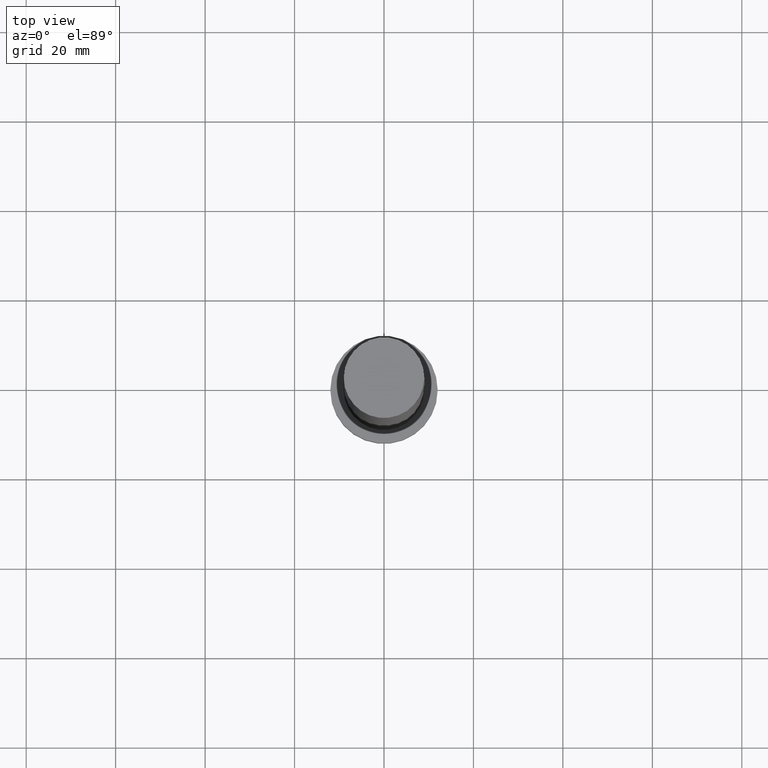
[diagram: clean part render]
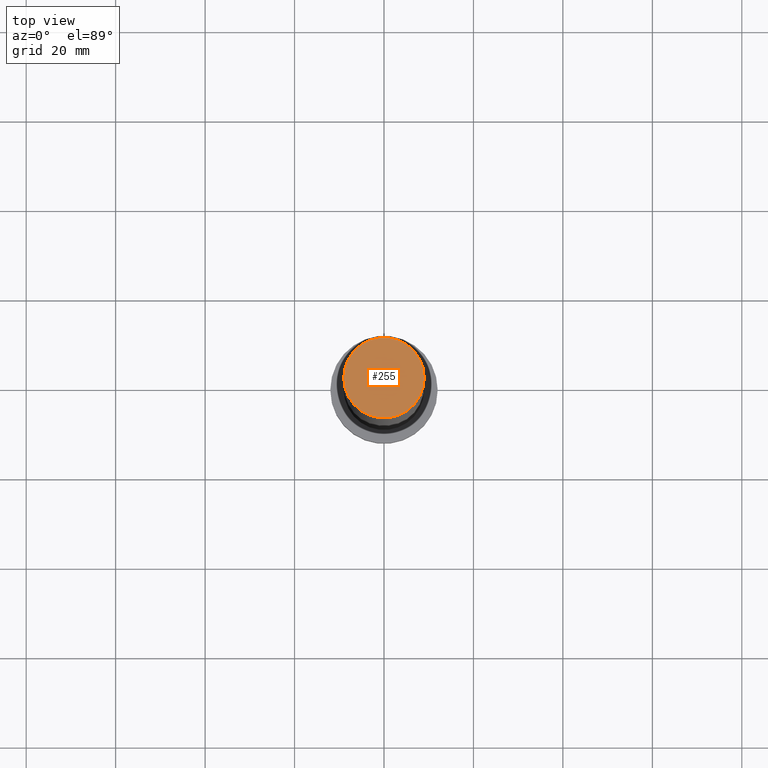
[diagram: same view with one face highlighted and labeled with its STEP entity id]
A machine part, top view. The second image highlights one B-rep face of the part: STEP entity #255.
In plain terms, the highlighted planar face has unit normal (0, 0, 1).
Its self-contained STEP definition (entity closure, byte-faithful):
#2 = VERTEX_POINT ( 'NONE', #157 ) ;
#10 = CARTESIAN_POINT ( 'NONE',  ( 0.000000000000000000, 0.000000000000000000, 160.0000000000000000 ) ) ;
#13 = CIRCLE ( 'NONE', #38, 9.000000000000000000 ) ;
#38 = AXIS2_PLACEMENT_3D ( 'NONE', #173, #232, #124 ) ;
#44 = DIRECTION ( 'NONE',  ( 0.000000000000000000, 0.000000000000000000, 1.000000000000000000 ) ) ;
#46 = DIRECTION ( 'NONE',  ( 1.000000000000000000, 0.000000000000000000, -0.000000000000000000 ) ) ;
#74 = AXIS2_PLACEMENT_3D ( 'NONE', #215, #44, #178 ) ;
#76 = EDGE_CURVE ( 'NONE', #241, #2, #13, .T. ) ;
#82 = ORIENTED_EDGE ( 'NONE', *, *, #199, .T. ) ;
#84 = EDGE_LOOP ( 'NONE', ( #82, #145 ) ) ;
#96 = FACE_OUTER_BOUND ( 'NONE', #84, .T. ) ;
#111 = CIRCLE ( 'NONE', #74, 9.000000000000000000 ) ;
#124 = DIRECTION ( 'NONE',  ( 1.000000000000000000, 0.000000000000000000, 0.000000000000000000 ) ) ;
#136 = CARTESIAN_POINT ( 'NONE',  ( 9.000000000000000000, 1.102182119232617714E-15, 160.0000000000000000 ) ) ;
#145 = ORIENTED_EDGE ( 'NONE', *, *, #76, .T. ) ;
#154 = PLANE ( 'NONE',  #168 ) ;
#157 = CARTESIAN_POINT ( 'NONE',  ( -9.000000000000000000, 0.000000000000000000, 160.0000000000000000 ) ) ;
#168 = AXIS2_PLACEMENT_3D ( 'NONE', #10, #169, #46 ) ;
#169 = DIRECTION ( 'NONE',  ( 0.000000000000000000, 0.000000000000000000, 1.000000000000000000 ) ) ;
#173 = CARTESIAN_POINT ( 'NONE',  ( 0.000000000000000000, 0.000000000000000000, 160.0000000000000000 ) ) ;
#178 = DIRECTION ( 'NONE',  ( 1.000000000000000000, 0.000000000000000000, 0.000000000000000000 ) ) ;
#199 = EDGE_CURVE ( 'NONE', #2, #241, #111, .T. ) ;
#215 = CARTESIAN_POINT ( 'NONE',  ( 0.000000000000000000, 0.000000000000000000, 160.0000000000000000 ) ) ;
#232 = DIRECTION ( 'NONE',  ( 0.000000000000000000, 0.000000000000000000, 1.000000000000000000 ) ) ;
#241 = VERTEX_POINT ( 'NONE', #136 ) ;
#255 = ADVANCED_FACE ( 'NONE', ( #96 ), #154, .T. ) ;